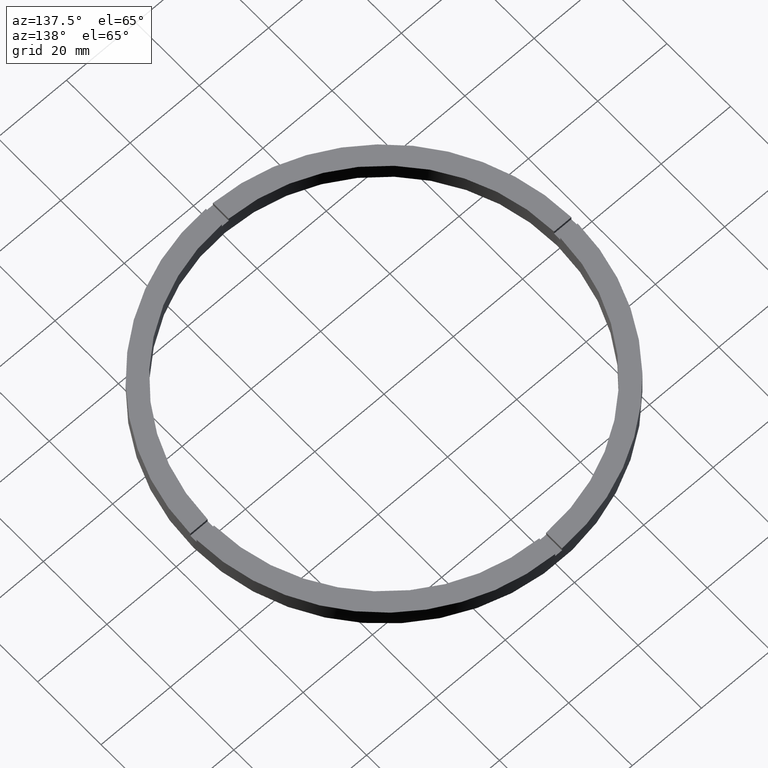
[diagram: clean part render]
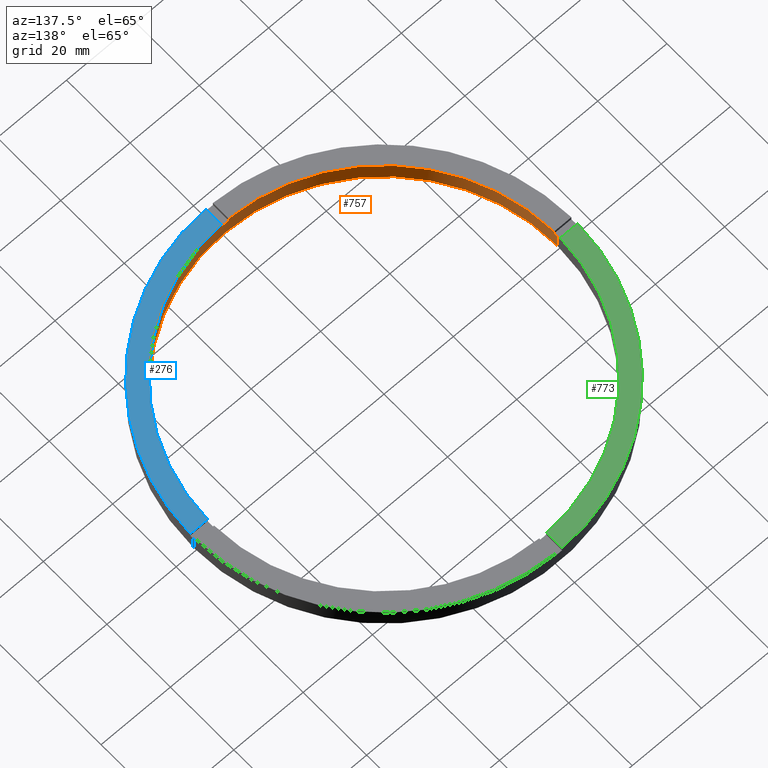
[diagram: same view with three faces highlighted in distinct colors, each labeled with its STEP entity id]
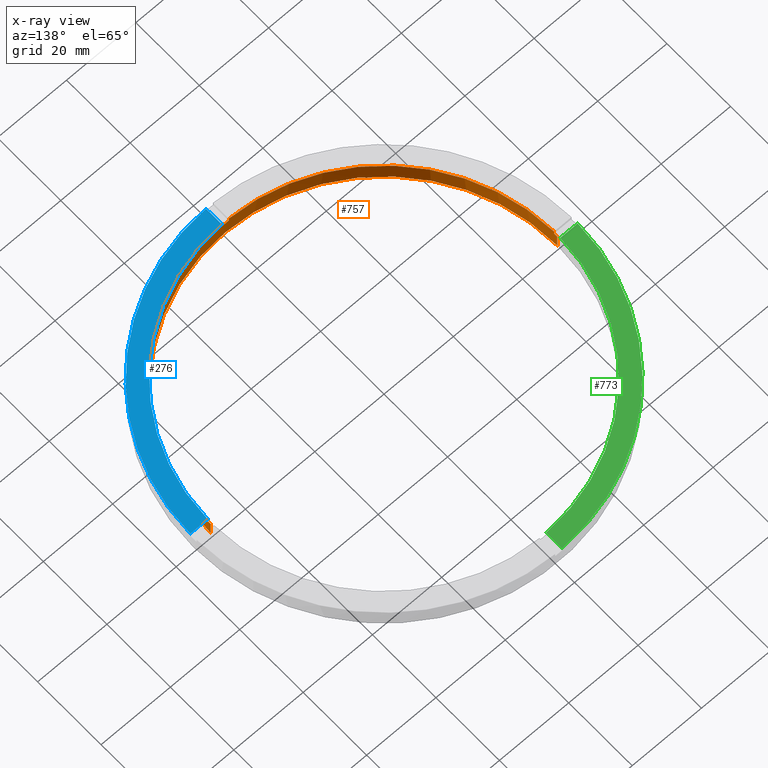
[diagram: x-ray of the same camera — body ghosted, the three highlighted faces saturated]
A machine part, auxiliary view with three faces highlighted in distinct colors.
The next image is the same camera in x-ray (body ghosted, the three faces saturated) — at least one of them is partly hidden behind the body in this view.
Their STEP definitions:

[orange] entity #757 — the highlighted cylindrical surface (partial cylindrical patch) has radius 50 mm, axis along (-0, -0, -1).
#9 = CARTESIAN_POINT ( 'NONE',  ( 0.000000000000000000, 0.000000000000000000, 4.500000000000000000 ) ) ;
#19 = VECTOR ( 'NONE', #368, 1000.000000000000000 ) ;
#20 = DIRECTION ( 'NONE',  ( 0.000000000000000000, 0.000000000000000000, 1.000000000000000000 ) ) ;
#29 = EDGE_CURVE ( 'NONE', #745, #480, #249, .T. ) ;
#37 = CARTESIAN_POINT ( 'NONE',  ( -49.98999899979995121, -1.000000000000031974, 5.500000000000000000 ) ) ;
#38 = DIRECTION ( 'NONE',  ( 0.000000000000000000, 0.000000000000000000, 1.000000000000000000 ) ) ;
#46 = EDGE_CURVE ( 'NONE', #493, #222, #508, .T. ) ;
#49 = CARTESIAN_POINT ( 'NONE',  ( 0.9999999999998439026, -49.98999899979995831, 4.500000000000000000 ) ) ;
#50 = AXIS2_PLACEMENT_3D ( 'NONE', #772, #38, #778 ) ;
#57 = CARTESIAN_POINT ( 'NONE',  ( -1.000000000000156097, -49.98999899979995121, 5.500000000000000000 ) ) ;
#58 = AXIS2_PLACEMENT_3D ( 'NONE', #158, #588, #253 ) ;
#65 = DIRECTION ( 'NONE',  ( 1.000000000000000000, 0.000000000000000000, 0.000000000000000000 ) ) ;
#99 = DIRECTION ( 'NONE',  ( -0.000000000000000000, -0.000000000000000000, -1.000000000000000000 ) ) ;
#101 = EDGE_CURVE ( 'NONE', #481, #222, #569, .T. ) ;
#102 = DIRECTION ( 'NONE',  ( 1.000000000000000000, 0.000000000000000000, 0.000000000000000000 ) ) ;
#105 = DIRECTION ( 'NONE',  ( 0.000000000000000000, 0.000000000000000000, 1.000000000000000000 ) ) ;
#117 = CIRCLE ( 'NONE', #531, 50.00000000000000000 ) ;
#124 = VECTOR ( 'NONE', #20, 1000.000000000000000 ) ;
#128 = VECTOR ( 'NONE', #743, 1000.000000000000000 ) ;
#130 = LINE ( 'NONE', #301, #128 ) ;
#140 = CIRCLE ( 'NONE', #170, 50.00000000000000000 ) ;
#142 = VECTOR ( 'NONE', #99, 1000.000000000000000 ) ;
#158 = CARTESIAN_POINT ( 'NONE',  ( 0.000000000000000000, 0.000000000000000000, 4.500000000000000000 ) ) ;
#164 = ORIENTED_EDGE ( 'NONE', *, *, #390, .F. ) ;
#166 = EDGE_LOOP ( 'NONE', ( #204, #723, #186, #206, #216, #164, #433, #417, #725, #428, #209, #678 ) ) ;
#170 = AXIS2_PLACEMENT_3D ( 'NONE', #775, #246, #102 ) ;
#171 = VERTEX_POINT ( 'NONE', #530 ) ;
#186 = ORIENTED_EDGE ( 'NONE', *, *, #46, .F. ) ;
#190 = VERTEX_POINT ( 'NONE', #290 ) ;
#191 = VERTEX_POINT ( 'NONE', #37 ) ;
#194 = CARTESIAN_POINT ( 'NONE',  ( -49.98999899979995121, -1.000000000000031974, 5.500000000000000000 ) ) ;
#200 = VERTEX_POINT ( 'NONE', #57 ) ;
#204 = ORIENTED_EDGE ( 'NONE', *, *, #233, .T. ) ;
#206 = ORIENTED_EDGE ( 'NONE', *, *, #628, .F. ) ;
#209 = ORIENTED_EDGE ( 'NONE', *, *, #29, .T. ) ;
#216 = ORIENTED_EDGE ( 'NONE', *, *, #567, .T. ) ;
#222 = VERTEX_POINT ( 'NONE', #358 ) ;
#227 = CARTESIAN_POINT ( 'NONE',  ( 49.98999899979995121, -1.000000000000154543, 5.500000000000000000 ) ) ;
#233 = EDGE_CURVE ( 'NONE', #680, #481, #554, .T. ) ;
#238 = AXIS2_PLACEMENT_3D ( 'NONE', #759, #105, #566 ) ;
#246 = DIRECTION ( 'NONE',  ( -0.000000000000000000, 0.000000000000000000, 1.000000000000000000 ) ) ;
#249 = CIRCLE ( 'NONE', #50, 50.00000000000000000 ) ;
#253 = DIRECTION ( 'NONE',  ( 1.000000000000000000, 0.000000000000000000, 0.000000000000000000 ) ) ;
#282 = CARTESIAN_POINT ( 'NONE',  ( 0.9999999999998439026, -49.98999899979995831, 5.500000000000000000 ) ) ;
#290 = CARTESIAN_POINT ( 'NONE',  ( -50.00000000000000000, 0.000000000000000000, 4.500000000000000000 ) ) ;
#301 = CARTESIAN_POINT ( 'NONE',  ( -50.00000000000000000, 0.000000000000000000, 5.500000000000000000 ) ) ;
#341 = DIRECTION ( 'NONE',  ( -0.000000000000000000, -0.000000000000000000, -1.000000000000000000 ) ) ;
#342 = EDGE_CURVE ( 'NONE', #191, #200, #388, .T. ) ;
#349 = CARTESIAN_POINT ( 'NONE',  ( 49.98999899979995121, -1.000000000000154543, 4.500000000000000000 ) ) ;
#358 = CARTESIAN_POINT ( 'NONE',  ( 50.00000000000000000, 6.123233995736766085E-15, 0.000000000000000000 ) ) ;
#366 = EDGE_CURVE ( 'NONE', #171, #200, #650, .T. ) ;
#368 = DIRECTION ( 'NONE',  ( -0.000000000000000000, -0.000000000000000000, -1.000000000000000000 ) ) ;
#373 = DIRECTION ( 'NONE',  ( 0.000000000000000000, 0.000000000000000000, 1.000000000000000000 ) ) ;
#385 = LINE ( 'NONE', #194, #391 ) ;
#387 = VECTOR ( 'NONE', #783, 1000.000000000000000 ) ;
#388 = CIRCLE ( 'NONE', #238, 50.00000000000000000 ) ;
#389 = LINE ( 'NONE', #640, #387 ) ;
#390 = EDGE_CURVE ( 'NONE', #191, #687, #385, .T. ) ;
#391 = VECTOR ( 'NONE', #736, 1000.000000000000000 ) ;
#399 = LINE ( 'NONE', #594, #142 ) ;
#412 = EDGE_CURVE ( 'NONE', #680, #480, #389, .T. ) ;
#417 = ORIENTED_EDGE ( 'NONE', *, *, #366, .F. ) ;
#428 = ORIENTED_EDGE ( 'NONE', *, *, #619, .F. ) ;
#433 = ORIENTED_EDGE ( 'NONE', *, *, #342, .T. ) ;
#480 = VERTEX_POINT ( 'NONE', #227 ) ;
#481 = VERTEX_POINT ( 'NONE', #607 ) ;
#493 = VERTEX_POINT ( 'NONE', #716 ) ;
#498 = DIRECTION ( 'NONE',  ( -1.000000000000000000, 0.000000000000000000, 0.000000000000000000 ) ) ;
#501 = CARTESIAN_POINT ( 'NONE',  ( -49.98999899979995121, -1.000000000000031974, 4.500000000000000000 ) ) ;
#508 = CIRCLE ( 'NONE', #528, 50.00000000000000000 ) ;
#518 = AXIS2_PLACEMENT_3D ( 'NONE', #551, #341, #498 ) ;
#528 = AXIS2_PLACEMENT_3D ( 'NONE', #615, #373, #613 ) ;
#530 = CARTESIAN_POINT ( 'NONE',  ( -1.000000000000156097, -49.98999899979995121, 4.500000000000000000 ) ) ;
#531 = AXIS2_PLACEMENT_3D ( 'NONE', #9, #753, #65 ) ;
#551 = CARTESIAN_POINT ( 'NONE',  ( 0.000000000000000000, 0.000000000000000000, 5.500000000000000000 ) ) ;
#554 = CIRCLE ( 'NONE', #58, 50.00000000000000000 ) ;
#566 = DIRECTION ( 'NONE',  ( 1.000000000000000000, 0.000000000000000000, 0.000000000000000000 ) ) ;
#567 = EDGE_CURVE ( 'NONE', #190, #687, #117, .T. ) ;
#569 = LINE ( 'NONE', #621, #19 ) ;
#588 = DIRECTION ( 'NONE',  ( 0.000000000000000000, 0.000000000000000000, 1.000000000000000000 ) ) ;
#594 = CARTESIAN_POINT ( 'NONE',  ( 0.9999999999998439026, -49.98999899979995831, 5.500000000000000000 ) ) ;
#607 = CARTESIAN_POINT ( 'NONE',  ( 50.00000000000000000, 6.123233995736766085E-15, 4.500000000000000000 ) ) ;
#613 = DIRECTION ( 'NONE',  ( 1.000000000000000000, 0.000000000000000000, 0.000000000000000000 ) ) ;
#615 = CARTESIAN_POINT ( 'NONE',  ( 0.000000000000000000, 0.000000000000000000, 0.000000000000000000 ) ) ;
#619 = EDGE_CURVE ( 'NONE', #745, #673, #399, .T. ) ;
#621 = CARTESIAN_POINT ( 'NONE',  ( 50.00000000000000000, 6.123233995736766085E-15, 5.500000000000000000 ) ) ;
#628 = EDGE_CURVE ( 'NONE', #190, #493, #130, .T. ) ;
#640 = CARTESIAN_POINT ( 'NONE',  ( 49.98999899979995121, -1.000000000000154543, 5.500000000000000000 ) ) ;
#650 = LINE ( 'NONE', #653, #124 ) ;
#653 = CARTESIAN_POINT ( 'NONE',  ( -1.000000000000156097, -49.98999899979995121, 5.500000000000000000 ) ) ;
#662 = CYLINDRICAL_SURFACE ( 'NONE', #518, 50.00000000000000000 ) ;
#665 = FACE_OUTER_BOUND ( 'NONE', #166, .T. ) ;
#673 = VERTEX_POINT ( 'NONE', #49 ) ;
#678 = ORIENTED_EDGE ( 'NONE', *, *, #412, .F. ) ;
#680 = VERTEX_POINT ( 'NONE', #349 ) ;
#687 = VERTEX_POINT ( 'NONE', #501 ) ;
#716 = CARTESIAN_POINT ( 'NONE',  ( -50.00000000000000000, 0.000000000000000000, 0.000000000000000000 ) ) ;
#723 = ORIENTED_EDGE ( 'NONE', *, *, #101, .T. ) ;
#725 = ORIENTED_EDGE ( 'NONE', *, *, #754, .T. ) ;
#736 = DIRECTION ( 'NONE',  ( -0.000000000000000000, -0.000000000000000000, -1.000000000000000000 ) ) ;
#743 = DIRECTION ( 'NONE',  ( -0.000000000000000000, -0.000000000000000000, -1.000000000000000000 ) ) ;
#745 = VERTEX_POINT ( 'NONE', #282 ) ;
#753 = DIRECTION ( 'NONE',  ( 0.000000000000000000, 0.000000000000000000, 1.000000000000000000 ) ) ;
#754 = EDGE_CURVE ( 'NONE', #171, #673, #140, .T. ) ;
#757 = ADVANCED_FACE ( 'NONE', ( #665 ), #662, .F. ) ;
#759 = CARTESIAN_POINT ( 'NONE',  ( 0.000000000000000000, 0.000000000000000000, 5.500000000000000000 ) ) ;
#772 = CARTESIAN_POINT ( 'NONE',  ( 0.000000000000000000, 0.000000000000000000, 5.500000000000000000 ) ) ;
#775 = CARTESIAN_POINT ( 'NONE',  ( 0.000000000000000000, 0.000000000000000000, 4.500000000000000000 ) ) ;
#778 = DIRECTION ( 'NONE',  ( 1.000000000000000000, 0.000000000000000000, 0.000000000000000000 ) ) ;
#783 = DIRECTION ( 'NONE',  ( 0.000000000000000000, 0.000000000000000000, 1.000000000000000000 ) ) ;

[blue] entity #276 — the highlighted planar face has unit normal (0, 0, 1).
#1 = PLANE ( 'NONE',  #35 ) ;
#3 = DIRECTION ( 'NONE',  ( 0.000000000000000000, 0.000000000000000000, 1.000000000000000000 ) ) ;
#23 = FACE_OUTER_BOUND ( 'NONE', #212, .T. ) ;
#29 = EDGE_CURVE ( 'NONE', #745, #480, #249, .T. ) ;
#35 = AXIS2_PLACEMENT_3D ( 'NONE', #272, #520, #92 ) ;
#38 = DIRECTION ( 'NONE',  ( 0.000000000000000000, 0.000000000000000000, 1.000000000000000000 ) ) ;
#40 = VECTOR ( 'NONE', #370, 1000.000000000000000 ) ;
#44 = LINE ( 'NONE', #756, #40 ) ;
#50 = AXIS2_PLACEMENT_3D ( 'NONE', #772, #38, #778 ) ;
#92 = DIRECTION ( 'NONE',  ( 1.000000000000000000, 0.000000000000000000, -0.000000000000000000 ) ) ;
#104 = LINE ( 'NONE', #251, #634 ) ;
#161 = CARTESIAN_POINT ( 'NONE',  ( 0.000000000000000000, 0.000000000000000000, 5.500000000000000000 ) ) ;
#212 = EDGE_LOOP ( 'NONE', ( #707, #686, #728, #441 ) ) ;
#227 = CARTESIAN_POINT ( 'NONE',  ( 49.98999899979995121, -1.000000000000154543, 5.500000000000000000 ) ) ;
#249 = CIRCLE ( 'NONE', #50, 50.00000000000000000 ) ;
#251 = CARTESIAN_POINT ( 'NONE',  ( 44.99999999999999289, -1.000000000000154987, 5.500000000000000000 ) ) ;
#272 = CARTESIAN_POINT ( 'NONE',  ( 0.000000000000000000, 0.000000000000000000, 5.500000000000000000 ) ) ;
#276 = ADVANCED_FACE ( 'NONE', ( #23 ), #1, .T. ) ;
#282 = CARTESIAN_POINT ( 'NONE',  ( 0.9999999999998439026, -49.98999899979995831, 5.500000000000000000 ) ) ;
#359 = CARTESIAN_POINT ( 'NONE',  ( 54.99090833947007440, -1.000000000000154099, 5.500000000000000000 ) ) ;
#370 = DIRECTION ( 'NONE',  ( -1.301042606982605074E-16, 1.000000000000000000, -0.000000000000000000 ) ) ;
#421 = VERTEX_POINT ( 'NONE', #359 ) ;
#438 = VERTEX_POINT ( 'NONE', #721 ) ;
#441 = ORIENTED_EDGE ( 'NONE', *, *, #595, .T. ) ;
#480 = VERTEX_POINT ( 'NONE', #227 ) ;
#502 = EDGE_CURVE ( 'NONE', #480, #421, #104, .T. ) ;
#520 = DIRECTION ( 'NONE',  ( 0.000000000000000000, 0.000000000000000000, 1.000000000000000000 ) ) ;
#541 = DIRECTION ( 'NONE',  ( 1.000000000000000000, 0.000000000000000000, 0.000000000000000000 ) ) ;
#590 = DIRECTION ( 'NONE',  ( 1.000000000000000000, 8.673617379884034239E-17, 0.000000000000000000 ) ) ;
#595 = EDGE_CURVE ( 'NONE', #438, #421, #656, .T. ) ;
#618 = AXIS2_PLACEMENT_3D ( 'NONE', #161, #3, #541 ) ;
#634 = VECTOR ( 'NONE', #590, 1000.000000000000000 ) ;
#656 = CIRCLE ( 'NONE', #618, 55.00000000000000000 ) ;
#686 = ORIENTED_EDGE ( 'NONE', *, *, #29, .F. ) ;
#707 = ORIENTED_EDGE ( 'NONE', *, *, #502, .F. ) ;
#721 = CARTESIAN_POINT ( 'NONE',  ( 0.9999999999998445688, -54.99090833947008150, 5.500000000000000000 ) ) ;
#728 = ORIENTED_EDGE ( 'NONE', *, *, #779, .F. ) ;
#745 = VERTEX_POINT ( 'NONE', #282 ) ;
#756 = CARTESIAN_POINT ( 'NONE',  ( 0.9999999999998432365, -45.00000000000017764, 5.500000000000000000 ) ) ;
#772 = CARTESIAN_POINT ( 'NONE',  ( 0.000000000000000000, 0.000000000000000000, 5.500000000000000000 ) ) ;
#778 = DIRECTION ( 'NONE',  ( 1.000000000000000000, 0.000000000000000000, 0.000000000000000000 ) ) ;
#779 = EDGE_CURVE ( 'NONE', #438, #745, #44, .T. ) ;

[green] entity #773 — the highlighted planar face has unit normal (0, 0, 1).
#8 = EDGE_CURVE ( 'NONE', #748, #681, #470, .T. ) ;
#26 = AXIS2_PLACEMENT_3D ( 'NONE', #131, #581, #495 ) ;
#41 = PLANE ( 'NONE',  #423 ) ;
#64 = EDGE_CURVE ( 'NONE', #681, #203, #509, .T. ) ;
#98 = DIRECTION ( 'NONE',  ( -0.000000000000000000, -1.000000000000000000, -0.000000000000000000 ) ) ;
#131 = CARTESIAN_POINT ( 'NONE',  ( 0.000000000000000000, 0.000000000000000000, 5.500000000000000000 ) ) ;
#181 = ORIENTED_EDGE ( 'NONE', *, *, #8, .F. ) ;
#203 = VERTEX_POINT ( 'NONE', #545 ) ;
#210 = EDGE_CURVE ( 'NONE', #447, #748, #549, .T. ) ;
#223 = ORIENTED_EDGE ( 'NONE', *, *, #64, .F. ) ;
#250 = EDGE_CURVE ( 'NONE', #447, #203, #305, .T. ) ;
#263 = CARTESIAN_POINT ( 'NONE',  ( 0.000000000000000000, 0.000000000000000000, 5.500000000000000000 ) ) ;
#274 = VECTOR ( 'NONE', #98, 1000.000000000000000 ) ;
#305 = CIRCLE ( 'NONE', #26, 55.00000000000000000 ) ;
#309 = CARTESIAN_POINT ( 'NONE',  ( -1.000000000000027311, 45.00000000000000000, 5.500000000000000000 ) ) ;
#344 = CARTESIAN_POINT ( 'NONE',  ( 0.000000000000000000, 0.000000000000000000, 5.500000000000000000 ) ) ;
#362 = AXIS2_PLACEMENT_3D ( 'NONE', #344, #525, #713 ) ;
#404 = FACE_OUTER_BOUND ( 'NONE', #467, .T. ) ;
#406 = CARTESIAN_POINT ( 'NONE',  ( -1.000000000000027311, 54.99090833947007440, 5.500000000000000000 ) ) ;
#408 = CARTESIAN_POINT ( 'NONE',  ( -1.000000000000027311, 49.98999899979995121, 5.500000000000000000 ) ) ;
#423 = AXIS2_PLACEMENT_3D ( 'NONE', #263, #431, #562 ) ;
#431 = DIRECTION ( 'NONE',  ( 0.000000000000000000, 0.000000000000000000, 1.000000000000000000 ) ) ;
#447 = VERTEX_POINT ( 'NONE', #406 ) ;
#467 = EDGE_LOOP ( 'NONE', ( #742, #677, #223, #181 ) ) ;
#470 = CIRCLE ( 'NONE', #362, 50.00000000000000000 ) ;
#495 = DIRECTION ( 'NONE',  ( 1.000000000000000000, 0.000000000000000000, 0.000000000000000000 ) ) ;
#509 = LINE ( 'NONE', #660, #767 ) ;
#525 = DIRECTION ( 'NONE',  ( 0.000000000000000000, 0.000000000000000000, 1.000000000000000000 ) ) ;
#535 = CARTESIAN_POINT ( 'NONE',  ( -49.98999899979995121, 0.9999999999999681366, 5.500000000000000000 ) ) ;
#545 = CARTESIAN_POINT ( 'NONE',  ( -54.99090833947007440, 0.9999999999999672484, 5.500000000000000000 ) ) ;
#549 = LINE ( 'NONE', #309, #274 ) ;
#562 = DIRECTION ( 'NONE',  ( 1.000000000000000000, 0.000000000000000000, -0.000000000000000000 ) ) ;
#581 = DIRECTION ( 'NONE',  ( 0.000000000000000000, 0.000000000000000000, 1.000000000000000000 ) ) ;
#660 = CARTESIAN_POINT ( 'NONE',  ( -45.00000000000018474, 0.9999999999999690248, 5.500000000000000000 ) ) ;
#677 = ORIENTED_EDGE ( 'NONE', *, *, #250, .T. ) ;
#681 = VERTEX_POINT ( 'NONE', #535 ) ;
#713 = DIRECTION ( 'NONE',  ( 1.000000000000000000, 0.000000000000000000, 0.000000000000000000 ) ) ;
#742 = ORIENTED_EDGE ( 'NONE', *, *, #210, .F. ) ;
#748 = VERTEX_POINT ( 'NONE', #408 ) ;
#760 = DIRECTION ( 'NONE',  ( -1.000000000000000000, -1.951563910473907735E-16, 0.000000000000000000 ) ) ;
#767 = VECTOR ( 'NONE', #760, 1000.000000000000000 ) ;
#773 = ADVANCED_FACE ( 'NONE', ( #404 ), #41, .T. ) ;